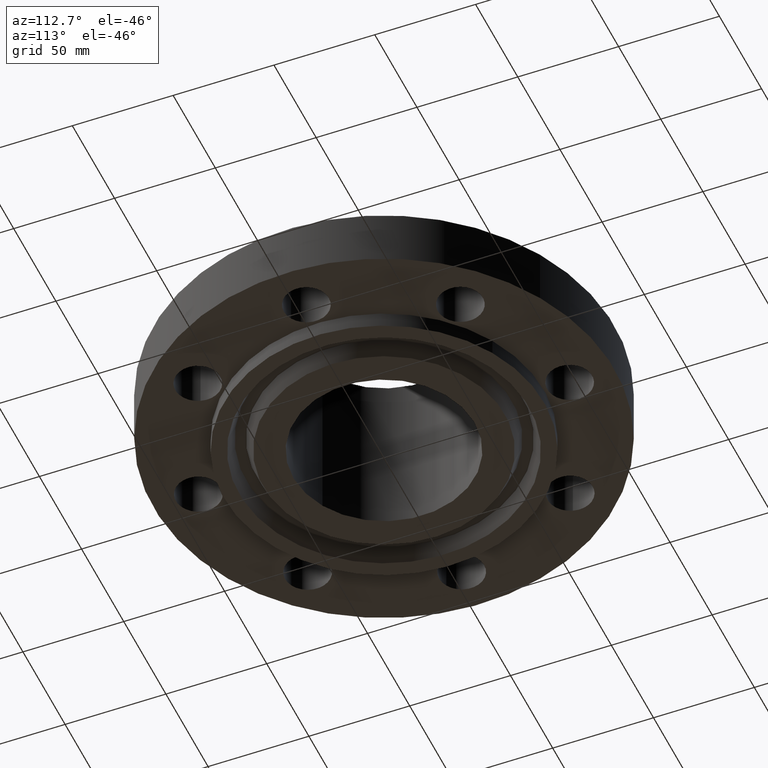
[diagram: clean part render]
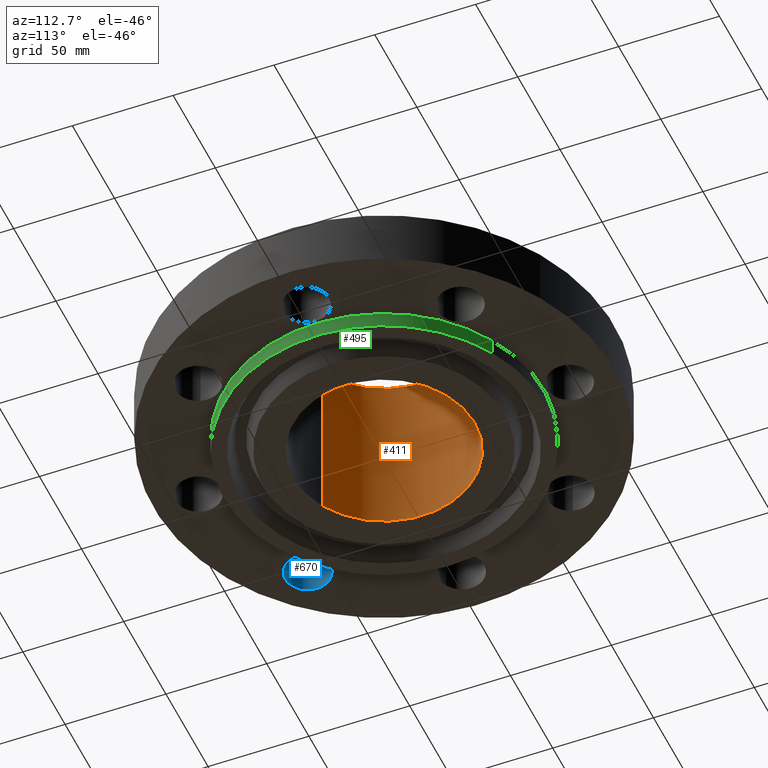
[diagram: same view with three faces highlighted in distinct colors, each labeled with its STEP entity id]
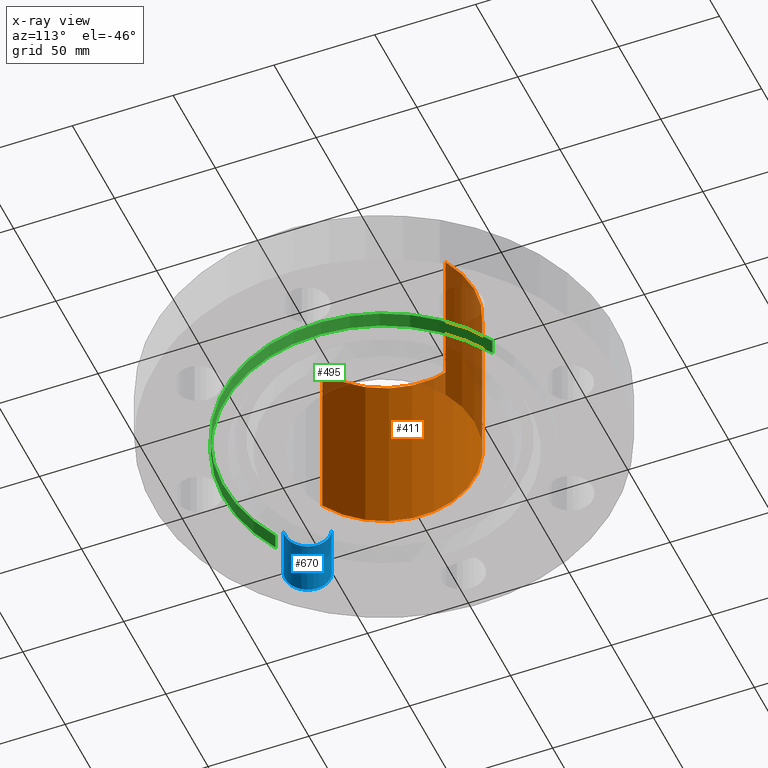
[diagram: x-ray of the same camera — body ghosted, the three highlighted faces saturated]
A machine part, auxiliary view with three faces highlighted in distinct colors.
The next image is the same camera in x-ray (body ghosted, the three faces saturated) — at least one of them is partly hidden behind the body in this view.
Their STEP definitions:

[orange] entity #411 — the highlighted cylindrical surface (partial cylindrical patch) has radius 45.0596 mm, axis along (0, 0, -1).
#358=AXIS2_PLACEMENT_3D('Cylinder Axis2P3D',#355,#356,#357) ;
#397=AXIS2_PLACEMENT_3D('Circle Axis2P3D',#395,#396,$) ;
#402=AXIS2_PLACEMENT_3D('Circle Axis2P3D',#400,#401,$) ;
#355=CARTESIAN_POINT('Axis2P3D Location',(0.,0.,1.40850000001)) ;
#364=CARTESIAN_POINT('Vertex',(0.850500905487,1.5568314648,3.13000000001)) ;
#366=CARTESIAN_POINT('Vertex',(-0.850500905487,-1.5568314648,3.13000000001)) ;
#369=CARTESIAN_POINT('Line Origine',(0.850500905487,1.5568314648,1.40850000001)) ;
#373=CARTESIAN_POINT('Vertex',(0.850500905487,1.5568314648,-0.313000000001)) ;
#380=CARTESIAN_POINT('Vertex',(-0.850500905487,-1.5568314648,-0.313000000001)) ;
#383=CARTESIAN_POINT('Line Origine',(-0.850500905487,-1.5568314648,1.40850000001)) ;
#395=CARTESIAN_POINT('Axis2P3D Location',(0.,0.,3.13000000001)) ;
#400=CARTESIAN_POINT('Axis2P3D Location',(0.,0.,-0.313000000001)) ;
#356=DIRECTION('Axis2P3D Direction',(0.,0.,-0.0393700787402)) ;
#357=DIRECTION('Axis2P3D XDirection',(-0.0188750212049,-0.0345504945626,0.)) ;
#370=DIRECTION('Vector Direction',(0.,0.,-0.0393700787402)) ;
#384=DIRECTION('Vector Direction',(0.,0.,-0.0393700787402)) ;
#396=DIRECTION('Axis2P3D Direction',(0.,0.,-0.0393700787402)) ;
#401=DIRECTION('Axis2P3D Direction',(0.,0.,-0.0393700787402)) ;
#371=VECTOR('Line Direction',#370,0.0393700787402) ;
#385=VECTOR('Line Direction',#384,0.0393700787402) ;
#406=ORIENTED_EDGE('',*,*,#399,.F.) ;
#407=ORIENTED_EDGE('',*,*,#387,.T.) ;
#408=ORIENTED_EDGE('',*,*,#404,.T.) ;
#409=ORIENTED_EDGE('',*,*,#375,.F.) ;
#411=ADVANCED_FACE('PartBody',(#410),#359,.F.) ;
#398=CIRCLE('generated circle',#397,1.77400000001) ;
#403=CIRCLE('generated circle',#402,1.77400000001) ;
#359=CYLINDRICAL_SURFACE('generated cylinder',#358,1.77400000001) ;
#375=EDGE_CURVE('',#365,#374,#372,.T.) ;
#387=EDGE_CURVE('',#367,#381,#386,.T.) ;
#399=EDGE_CURVE('',#367,#365,#398,.T.) ;
#404=EDGE_CURVE('',#381,#374,#403,.T.) ;
#405=EDGE_LOOP('',(#406,#407,#408,#409)) ;
#410=FACE_OUTER_BOUND('',#405,.T.) ;
#372=LINE('Line',#369,#371) ;
#386=LINE('Line',#383,#385) ;
#365=VERTEX_POINT('',#364) ;
#367=VERTEX_POINT('',#366) ;
#374=VERTEX_POINT('',#373) ;
#381=VERTEX_POINT('',#380) ;

[blue] entity #670 — the highlighted cylindrical surface (edge-blend (fillet) strip) has radius 11.176 mm, axis along (0, 0, -1).
#587=AXIS2_PLACEMENT_3D('Circle Axis2P3D',#585,#586,$) ;
#643=AXIS2_PLACEMENT_3D('Cylinder Axis2P3D',#640,#641,#642) ;
#661=AXIS2_PLACEMENT_3D('Circle Axis2P3D',#659,#660,$) ;
#585=CARTESIAN_POINT('Axis2P3D Location',(-2.56326208181,-2.56326208181,0.)) ;
#589=CARTESIAN_POINT('Vertex',(-2.43938468811,-2.98546391901,0.)) ;
#591=CARTESIAN_POINT('Vertex',(-2.68713947551,-2.14106024462,0.)) ;
#640=CARTESIAN_POINT('Axis2P3D Location',(-2.56326208181,-2.56326208181,1.11606299213)) ;
#645=CARTESIAN_POINT('Line Origine',(-2.43938468811,-2.98546391901,0.560000000002)) ;
#649=CARTESIAN_POINT('Vertex',(-2.43938468811,-2.98546391901,1.12)) ;
#652=CARTESIAN_POINT('Line Origine',(-2.68713947551,-2.14106024462,0.560000000002)) ;
#656=CARTESIAN_POINT('Vertex',(-2.68713947551,-2.14106024462,1.12)) ;
#659=CARTESIAN_POINT('Axis2P3D Location',(-2.56326208181,-2.56326208181,1.12)) ;
#586=DIRECTION('Axis2P3D Direction',(0.,0.,-0.0393700787402)) ;
#641=DIRECTION('Axis2P3D Direction',(0.,0.,-0.0393700787402)) ;
#642=DIRECTION('Axis2P3D XDirection',(-0.0110842335096,0.0377775444876,0.)) ;
#646=DIRECTION('Vector Direction',(0.,0.,-0.0393700787402)) ;
#653=DIRECTION('Vector Direction',(0.,0.,-0.0393700787402)) ;
#660=DIRECTION('Axis2P3D Direction',(0.,0.,-0.0393700787402)) ;
#647=VECTOR('Line Direction',#646,0.0393700787402) ;
#654=VECTOR('Line Direction',#653,0.0393700787402) ;
#665=ORIENTED_EDGE('',*,*,#651,.F.) ;
#666=ORIENTED_EDGE('',*,*,#593,.T.) ;
#667=ORIENTED_EDGE('',*,*,#658,.T.) ;
#668=ORIENTED_EDGE('',*,*,#663,.F.) ;
#670=ADVANCED_FACE('PartBody',(#669),#644,.F.) ;
#588=CIRCLE('generated circle',#587,0.440000000002) ;
#662=CIRCLE('generated circle',#661,0.440000000002) ;
#644=CYLINDRICAL_SURFACE('generated cylinder',#643,0.440000000002) ;
#593=EDGE_CURVE('',#590,#592,#588,.T.) ;
#651=EDGE_CURVE('',#590,#650,#648,.F.) ;
#658=EDGE_CURVE('',#592,#657,#655,.F.) ;
#663=EDGE_CURVE('',#650,#657,#662,.T.) ;
#664=EDGE_LOOP('',(#665,#666,#667,#668)) ;
#669=FACE_OUTER_BOUND('',#664,.T.) ;
#648=LINE('Line',#645,#647) ;
#655=LINE('Line',#652,#654) ;
#590=VERTEX_POINT('',#589) ;
#592=VERTEX_POINT('',#591) ;
#650=VERTEX_POINT('',#649) ;
#657=VERTEX_POINT('',#656) ;

[green] entity #495 — the highlighted cylindrical surface (partial cylindrical patch) has radius 79.375 mm, axis along (0, 0, -1).
#442=AXIS2_PLACEMENT_3D('Cylinder Axis2P3D',#439,#440,#441) ;
#481=AXIS2_PLACEMENT_3D('Circle Axis2P3D',#479,#480,$) ;
#486=AXIS2_PLACEMENT_3D('Circle Axis2P3D',#484,#485,$) ;
#439=CARTESIAN_POINT('Axis2P3D Location',(0.,0.,1.40850000001)) ;
#448=CARTESIAN_POINT('Vertex',(-1.49820480814,-2.74244550592,-0.313000000001)) ;
#450=CARTESIAN_POINT('Vertex',(1.49820480814,2.74244550592,-0.313000000001)) ;
#453=CARTESIAN_POINT('Line Origine',(-1.49820480814,-2.74244550592,-0.156500000001)) ;
#457=CARTESIAN_POINT('Vertex',(-1.49820480814,-2.74244550592,0.)) ;
#464=CARTESIAN_POINT('Vertex',(1.49820480814,2.74244550592,0.)) ;
#467=CARTESIAN_POINT('Line Origine',(1.49820480814,2.74244550592,-0.156500000001)) ;
#479=CARTESIAN_POINT('Axis2P3D Location',(0.,0.,-0.313000000001)) ;
#484=CARTESIAN_POINT('Axis2P3D Location',(0.,0.,2.79741234551E-016)) ;
#440=DIRECTION('Axis2P3D Direction',(0.,0.,-0.0393700787402)) ;
#441=DIRECTION('Axis2P3D XDirection',(0.0188750212049,0.0345504945626,0.)) ;
#454=DIRECTION('Vector Direction',(0.,0.,-0.0393700787402)) ;
#468=DIRECTION('Vector Direction',(0.,0.,-0.0393700787402)) ;
#480=DIRECTION('Axis2P3D Direction',(0.,0.,-0.0393700787402)) ;
#485=DIRECTION('Axis2P3D Direction',(0.,0.,-0.0393700787402)) ;
#455=VECTOR('Line Direction',#454,0.0393700787402) ;
#469=VECTOR('Line Direction',#468,0.0393700787402) ;
#490=ORIENTED_EDGE('',*,*,#483,.F.) ;
#491=ORIENTED_EDGE('',*,*,#471,.T.) ;
#492=ORIENTED_EDGE('',*,*,#488,.T.) ;
#493=ORIENTED_EDGE('',*,*,#459,.F.) ;
#495=ADVANCED_FACE('PartBody',(#494),#443,.T.) ;
#482=CIRCLE('generated circle',#481,3.12500000001) ;
#487=CIRCLE('generated circle',#486,3.12500000001) ;
#443=CYLINDRICAL_SURFACE('generated cylinder',#442,3.12500000001) ;
#459=EDGE_CURVE('',#449,#458,#456,.F.) ;
#471=EDGE_CURVE('',#451,#465,#470,.F.) ;
#483=EDGE_CURVE('',#451,#449,#482,.T.) ;
#488=EDGE_CURVE('',#465,#458,#487,.T.) ;
#489=EDGE_LOOP('',(#490,#491,#492,#493)) ;
#494=FACE_OUTER_BOUND('',#489,.T.) ;
#456=LINE('Line',#453,#455) ;
#470=LINE('Line',#467,#469) ;
#449=VERTEX_POINT('',#448) ;
#451=VERTEX_POINT('',#450) ;
#458=VERTEX_POINT('',#457) ;
#465=VERTEX_POINT('',#464) ;